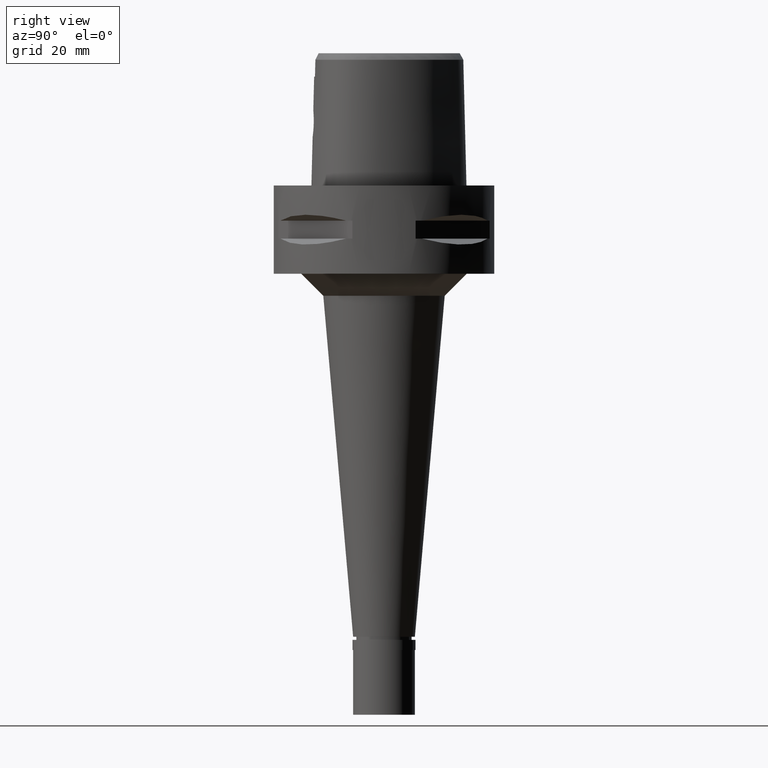
[diagram: clean part render]
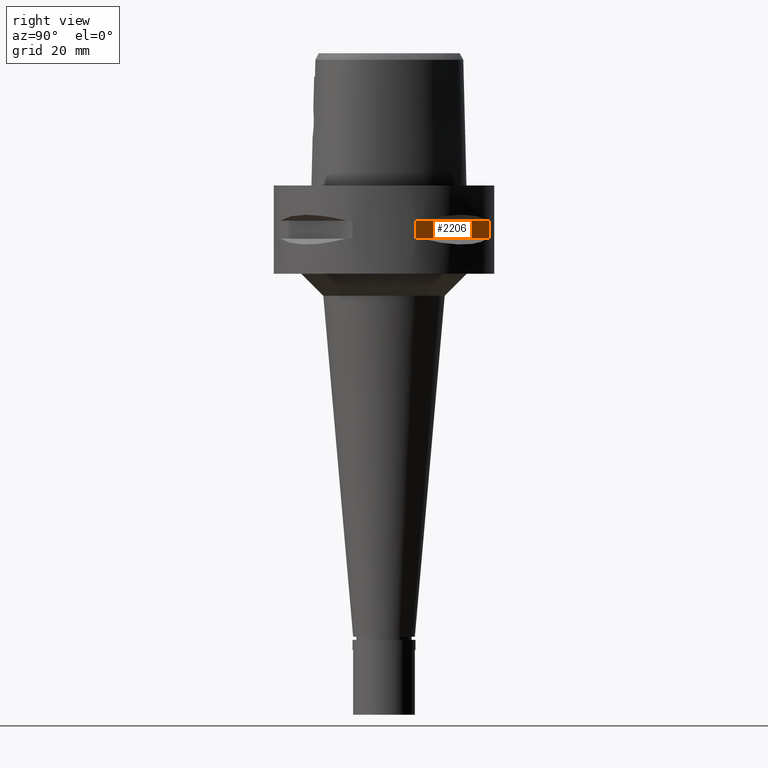
[diagram: same view with one face highlighted and labeled with its STEP entity id]
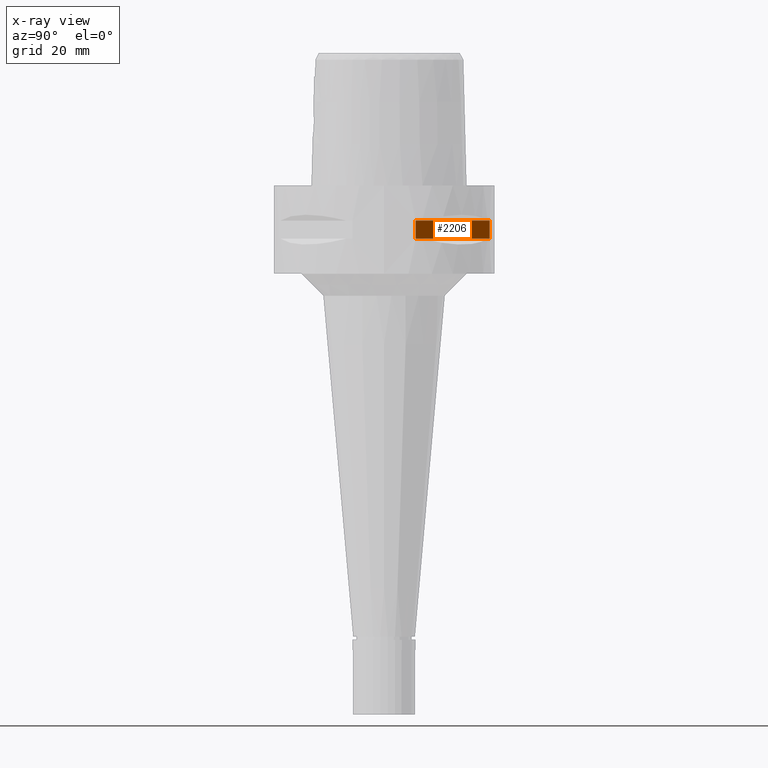
[diagram: x-ray of the same camera — body ghosted, the highlighted face saturated]
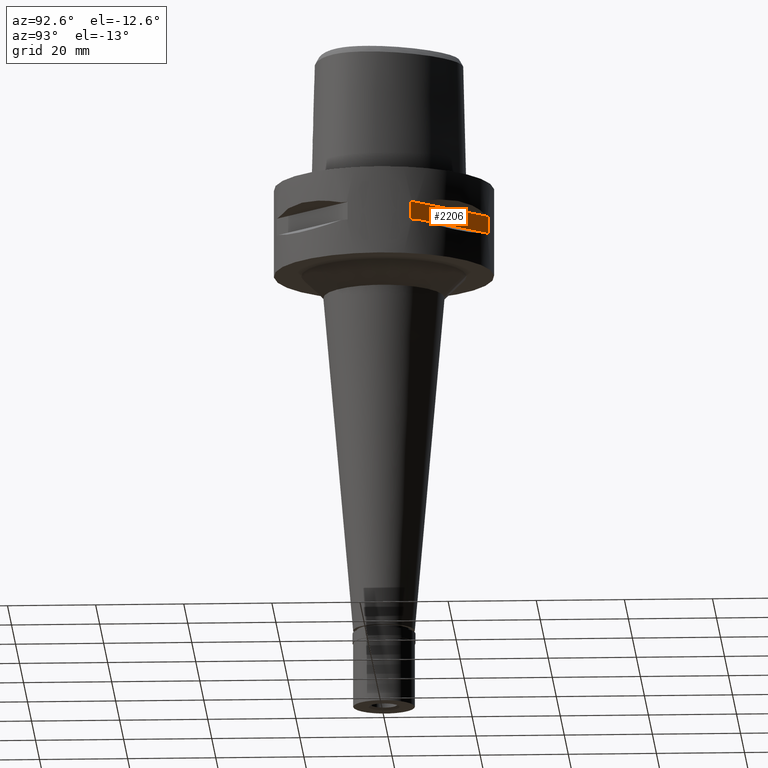
[diagram: same view with one face highlighted and labeled with its STEP entity id]
A machine part, right view. The second image highlights one B-rep face of the part: STEP entity #2206.
The next image is the same camera in x-ray: the body ghosted, the highlighted face saturated — about 0% of this face is hidden behind the body in this view.
A second angle (auxiliary view) of the same face is appended — the face is thin or edge-on in the first view.
In plain terms, the highlighted planar face has unit normal (-0.7071, -0.7071, 0).
Its self-contained STEP definition (entity closure, byte-faithful):
#68 = EDGE_CURVE ( 'NONE', #937, #3154, #3868, .T. ) ;
#401 = ORIENTED_EDGE ( 'NONE', *, *, #3315, .F. ) ;
#778 = VECTOR ( 'NONE', #4046, 1000.000000000000000 ) ;
#917 = VERTEX_POINT ( 'NONE', #1644 ) ;
#937 = VERTEX_POINT ( 'NONE', #4189 ) ;
#948 = DIRECTION ( 'NONE',  ( 0.7071067811865474617, -0.7071067811865474617, 0.0000000000000000000 ) ) ;
#1464 = CARTESIAN_POINT ( 'NONE',  ( 23.95277699797999915, 7.159921374230999724, -7.950000000000000178 ) ) ;
#1644 = CARTESIAN_POINT ( 'NONE',  ( 23.95277699797999915, 7.159921374230999724, -12.05000000000000071 ) ) ;
#1675 = FACE_OUTER_BOUND ( 'NONE', #3783, .T. ) ;
#1798 = LINE ( 'NONE', #4289, #3545 ) ;
#1925 = EDGE_CURVE ( 'NONE', #3154, #917, #2201, .T. ) ;
#2002 = VECTOR ( 'NONE', #4683, 1000.000000000000000 ) ;
#2040 = VERTEX_POINT ( 'NONE', #3489 ) ;
#2047 = CARTESIAN_POINT ( 'NONE',  ( 4.949747468305999654, 26.16295090389999700, -7.950000000000000178 ) ) ;
#2080 = DIRECTION ( 'NONE',  ( 0.7071067811865474617, -0.7071067811865474617, 0.0000000000000000000 ) ) ;
#2125 = VECTOR ( 'NONE', #948, 1000.000000000000114 ) ;
#2201 = LINE ( 'NONE', #1464, #778 ) ;
#2206 = ADVANCED_FACE ( 'NONE', ( #1675 ), #3155, .F. ) ;
#2377 = ORIENTED_EDGE ( 'NONE', *, *, #1925, .T. ) ;
#2539 = ORIENTED_EDGE ( 'NONE', *, *, #4100, .T. ) ;
#2867 = LINE ( 'NONE', #3899, #2002 ) ;
#3105 = AXIS2_PLACEMENT_3D ( 'NONE', #2047, #4608, #4223 ) ;
#3154 = VERTEX_POINT ( 'NONE', #3245 ) ;
#3155 = PLANE ( 'NONE',  #3105 ) ;
#3245 = CARTESIAN_POINT ( 'NONE',  ( 23.95277699797999915, 7.159921374235000080, -7.950000000000000178 ) ) ;
#3315 = EDGE_CURVE ( 'NONE', #2040, #917, #1798, .T. ) ;
#3489 = CARTESIAN_POINT ( 'NONE',  ( 7.159921374235000080, 23.95277699797999915, -12.05000000000000071 ) ) ;
#3545 = VECTOR ( 'NONE', #2080, 1000.000000000000114 ) ;
#3601 = ORIENTED_EDGE ( 'NONE', *, *, #68, .T. ) ;
#3783 = EDGE_LOOP ( 'NONE', ( #3601, #2377, #401, #2539 ) ) ;
#3868 = LINE ( 'NONE', #4602, #2125 ) ;
#3899 = CARTESIAN_POINT ( 'NONE',  ( 7.159921374230999724, 23.95277699797999915, -12.05000000000000071 ) ) ;
#4046 = DIRECTION ( 'NONE',  ( 0.0000000000000000000, 0.0000000000000000000, -1.000000000000000000 ) ) ;
#4100 = EDGE_CURVE ( 'NONE', #2040, #937, #2867, .T. ) ;
#4189 = CARTESIAN_POINT ( 'NONE',  ( 7.159921374230999724, 23.95277699797999915, -7.950000000000000178 ) ) ;
#4223 = DIRECTION ( 'NONE',  ( -0.7071067811865475727, 0.7071067811865475727, 0.0000000000000000000 ) ) ;
#4289 = CARTESIAN_POINT ( 'NONE',  ( 7.159921374230999724, 23.95277699797999915, -12.05000000000000071 ) ) ;
#4602 = CARTESIAN_POINT ( 'NONE',  ( 7.159921374230999724, 23.95277699797999915, -7.950000000000000178 ) ) ;
#4608 = DIRECTION ( 'NONE',  ( -0.7071067811865475727, -0.7071067811865475727, 0.0000000000000000000 ) ) ;
#4683 = DIRECTION ( 'NONE',  ( 0.0000000000000000000, 0.0000000000000000000, 1.000000000000000000 ) ) ;